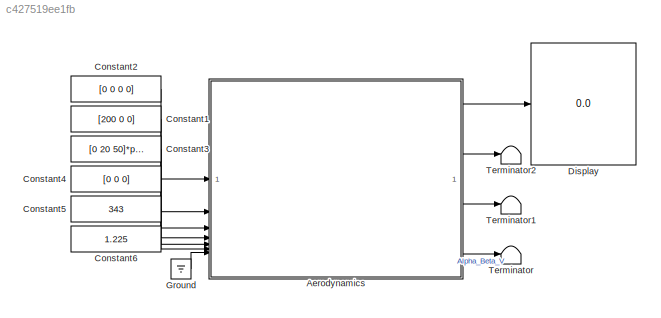
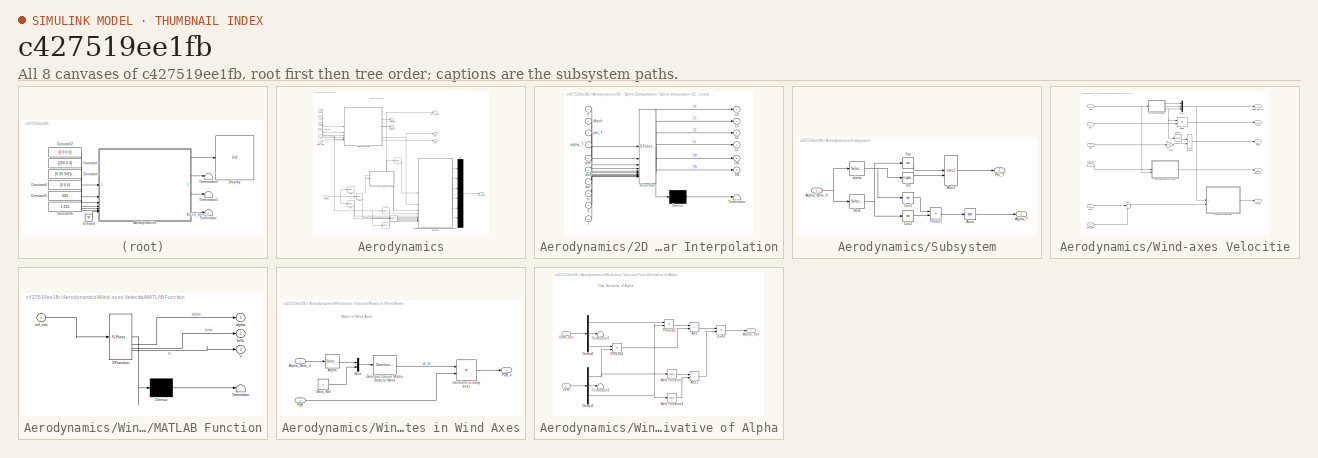
[diagram: thumbnail index - all 8 canvases of the model, root first then tree order]
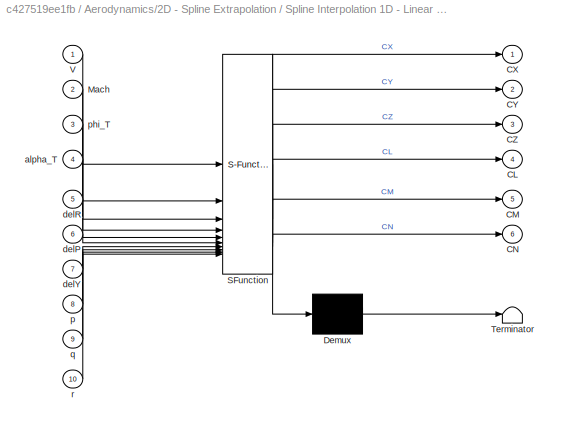
MODEL slx_c427519ee1fb
KIND model
CONFIG AbsTol = auto
CONFIG EnableMultiTasking = off
CONFIG FixedStep = auto
CONFIG MaxStep = auto
CONFIG MinStep = auto
CONFIG RelTol = 1e-3
CONFIG SampleTimeConstraint = Unconstrained
CONFIG SolverName = VariableStepAuto
CONFIG StartTime = 0.0
CONFIG StopTime = 10.0
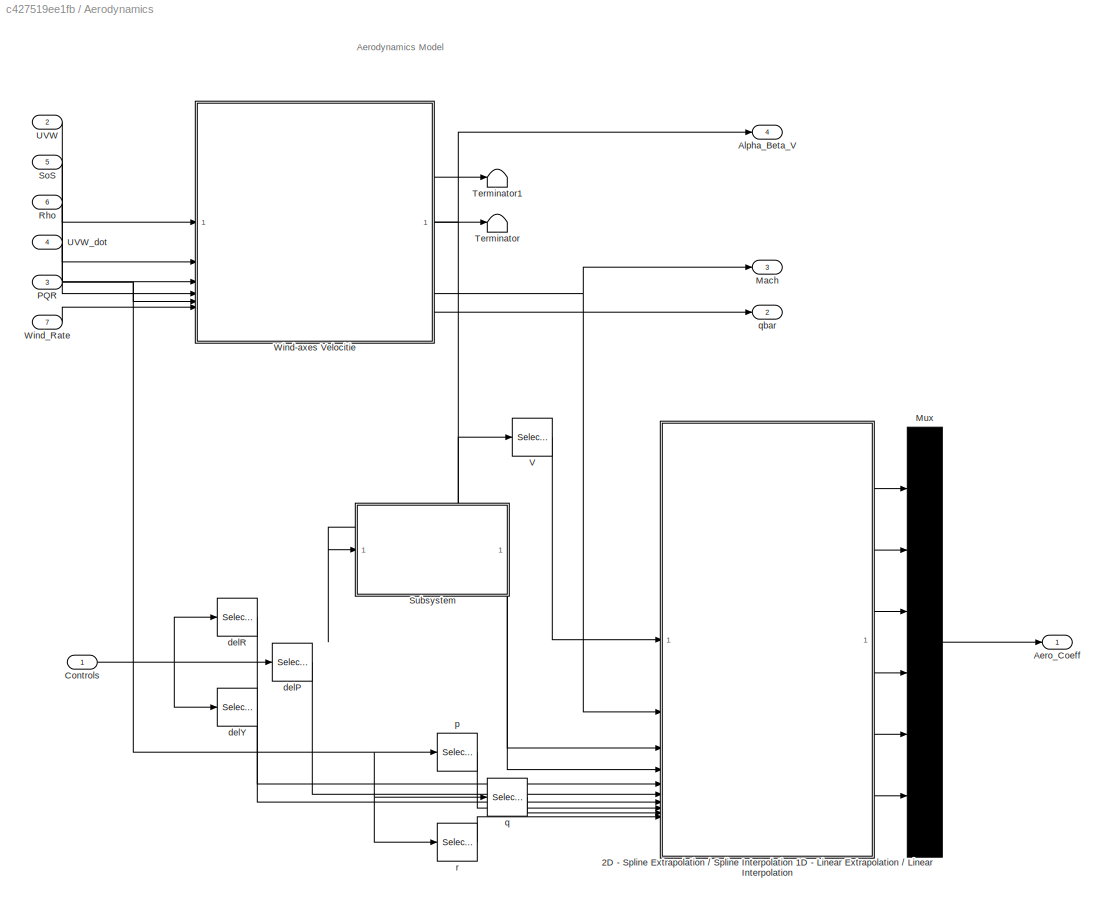
BLOCK [SubSystem] Aerodynamics
BLOCK [SubSystem] Aerodynamics/2D - Spline Extrapolation // Spline Interpolation 1D - Linear Extrapolation // Linear Interpolation
  ErrorFcn = Stateflow.Translate.translate
  LibrarySourceBlock = simulink/User-Defined\nFunctions/MATLAB Function
  PermitHierarchicalResolution = ExplicitOnly
  SFBlockType = MATLAB Function
  TreatAsAtomicUnit = on
BLOCK [Demux] Aerodynamics/2D - Spline Extrapolation // Spline Interpolation 1D - Linear Extrapolation // Linear Interpolation/ Demux 
  Outputs = 1
BLOCK [S-Function] Aerodynamics/2D - Spline Extrapolation // Spline Interpolation 1D - Linear Extrapolation // Linear Interpolation/ SFunction 
  EnableBusSupport = on
  FunctionName = sf_sfun
  PortCounts = [10 7]
  SFcnIsStateOwnerBlock = off
  SFunctionDeploymentMode = off
  Tag = Stateflow S-Function 3
BLOCK [Terminator] Aerodynamics/2D - Spline Extrapolation // Spline Interpolation 1D - Linear Extrapolation // Linear Interpolation/ Terminator 
BLOCK [Outport] Aerodynamics/2D - Spline Extrapolation // Spline Interpolation 1D - Linear Extrapolation // Linear Interpolation/CL
  Port = 4
BLOCK [Outport] Aerodynamics/2D - Spline Extrapolation // Spline Interpolation 1D - Linear Extrapolation // Linear Interpolation/CM
  Port = 5
BLOCK [Outport] Aerodynamics/2D - Spline Extrapolation // Spline Interpolation 1D - Linear Extrapolation // Linear Interpolation/CN
  Port = 6
BLOCK [Outport] Aerodynamics/2D - Spline Extrapolation // Spline Interpolation 1D - Linear Extrapolation // Linear Interpolation/CX
BLOCK [Outport] Aerodynamics/2D - Spline Extrapolation // Spline Interpolation 1D - Linear Extrapolation // Linear Interpolation/CY
  Port = 2
BLOCK [Outport] Aerodynamics/2D - Spline Extrapolation // Spline Interpolation 1D - Linear Extrapolation // Linear Interpolation/CZ
  Port = 3
BLOCK [Inport] Aerodynamics/2D - Spline Extrapolation // Spline Interpolation 1D - Linear Extrapolation // Linear Interpolation/Mach
  Port = 2
BLOCK [Inport] Aerodynamics/2D - Spline Extrapolation // Spline Interpolation 1D - Linear Extrapolation // Linear Interpolation/V
BLOCK [Inport] Aerodynamics/2D - Spline Extrapolation // Spline Interpolation 1D - Linear Extrapolation // Linear Interpolation/alpha_T
  Port = 4
BLOCK [Inport] Aerodynamics/2D - Spline Extrapolation // Spline Interpolation 1D - Linear Extrapolation // Linear Interpolation/delP
  Port = 6
BLOCK [Inport] Aerodynamics/2D - Spline Extrapolation // Spline Interpolation 1D - Linear Extrapolation // Linear Interpolation/delR
  Port = 5
BLOCK [Inport] Aerodynamics/2D - Spline Extrapolation // Spline Interpolation 1D - Linear Extrapolation // Linear Interpolation/delY
  Port = 7
BLOCK [Inport] Aerodynamics/2D - Spline Extrapolation // Spline Interpolation 1D - Linear Extrapolation // Linear Interpolation/p
  Port = 8
BLOCK [Inport] Aerodynamics/2D - Spline Extrapolation // Spline Interpolation 1D - Linear Extrapolation // Linear Interpolation/phi_T
  Port = 3
BLOCK [Inport] Aerodynamics/2D - Spline Extrapolation // Spline Interpolation 1D - Linear Extrapolation // Linear Interpolation/q
  Port = 9
BLOCK [Inport] Aerodynamics/2D - Spline Extrapolation // Spline Interpolation 1D - Linear Extrapolation // Linear Interpolation/r
  Port = 10
BLOCK [Outport] Aerodynamics/Aero_Coeff
BLOCK [Outport] Aerodynamics/Alpha_Beta_V
  Port = 4
BLOCK [Inport] Aerodynamics/Controls
BLOCK [Outport] Aerodynamics/Mach
  Port = 3
BLOCK [Mux] Aerodynamics/Mux
  DisplayOption = bar
  Inputs = 6
BLOCK [Inport] Aerodynamics/PQR
  Port = 3
BLOCK [Inport] Aerodynamics/Rho
  Port = 6
BLOCK [Inport] Aerodynamics/SoS
  Port = 5
BLOCK [SubSystem] Aerodynamics/Subsystem
BLOCK [Trigonometry] Aerodynamics/Subsystem/Acos
  Operator = acos
BLOCK [Inport] Aerodynamics/Subsystem/Alpha_Beta_V
BLOCK [Outport] Aerodynamics/Subsystem/Alpha_T
  Port = 2
BLOCK [Trigonometry] Aerodynamics/Subsystem/Atan2
  Operator = atan2
BLOCK [Selector] Aerodynamics/Subsystem/Beta
  IndexOptions = Index vector (dialog)
  Indices = [2]
  InputPortWidth = 3
  OutputSizes = 1
BLOCK [Trigonometry] Aerodynamics/Subsystem/Cos1
  Operator = cos
BLOCK [Trigonometry] Aerodynamics/Subsystem/Cos2
  Operator = cos
BLOCK [Outport] Aerodynamics/Subsystem/Phi_T
BLOCK [Product] Aerodynamics/Subsystem/Product
BLOCK [Trigonometry] Aerodynamics/Subsystem/Sin
BLOCK [Trigonometry] Aerodynamics/Subsystem/Tan
  Operator = tan
BLOCK [Selector] Aerodynamics/Subsystem/alpha
  IndexOptions = Index vector (dialog)
  Indices = [1]
  InputPortWidth = 3
  OutputSizes = 1
BLOCK [Terminator] Aerodynamics/Terminator
BLOCK [Terminator] Aerodynamics/Terminator1
BLOCK [Inport] Aerodynamics/UVW
  Port = 2
BLOCK [Inport] Aerodynamics/UVW_dot 
  Port = 4
BLOCK [Selector] Aerodynamics/V
  IndexOptions = Index vector (dialog)
  Indices = [3]
  InputPortWidth = 3
  OutputSizes = 1
BLOCK [SubSystem] Aerodynamics/Wind-axes Velocitie
BLOCK [Outport] Aerodynamics/Wind-axes Velocitie/Alpha_Beta_V
BLOCK [Product] Aerodynamics/Wind-axes Velocitie/Divide
  Inputs = */
BLOCK [Gain] Aerodynamics/Wind-axes Velocitie/Gain
  Gain = 0.5
BLOCK [SubSystem] Aerodynamics/Wind-axes Velocitie/MATLAB Function
  ErrorFcn = Stateflow.Translate.translate
  LibrarySourceBlock = simulink/User-Defined\nFunctions/MATLAB Function
  PermitHierarchicalResolution = ExplicitOnly
  SFBlockType = MATLAB Function
  TreatAsAtomicUnit = on
BLOCK [Demux] Aerodynamics/Wind-axes Velocitie/MATLAB Function/ Demux 
  Outputs = 1
BLOCK [S-Function] Aerodynamics/Wind-axes Velocitie/MATLAB Function/ SFunction 
  EnableBusSupport = on
  FunctionName = sf_sfun
  PortCounts = [1 4]
  SFcnIsStateOwnerBlock = off
  SFunctionDeploymentMode = off
  Tag = Stateflow S-Function 1
BLOCK [Terminator] Aerodynamics/Wind-axes Velocitie/MATLAB Function/ Terminator 
BLOCK [Outport] Aerodynamics/Wind-axes Velocitie/MATLAB Function/V
  Port = 3
BLOCK [Outport] Aerodynamics/Wind-axes Velocitie/MATLAB Function/alpha
BLOCK [Outport] Aerodynamics/Wind-axes Velocitie/MATLAB Function/beta
  Port = 2
BLOCK [Inport] Aerodynamics/Wind-axes Velocitie/MATLAB Function/vel_vec
BLOCK [Outport] Aerodynamics/Wind-axes Velocitie/Mach
  Port = 4
BLOCK [Mux] Aerodynamics/Wind-axes Velocitie/Mux1
  DisplayOption = bar
  Inputs = 3
BLOCK [Inport] Aerodynamics/Wind-axes Velocitie/PQR
  Port = 5
BLOCK [Outport] Aerodynamics/Wind-axes Velocitie/PQR_s
  Port = 2
BLOCK [Product] Aerodynamics/Wind-axes Velocitie/Product
BLOCK [SubSystem] Aerodynamics/Wind-axes Velocitie/Rates in Wind Axes
BLOCK [Selector] Aerodynamics/Wind-axes Velocitie/Rates in Wind Axes/Alpha
  IndexOptions = Index vector (dialog)
  Indices = [1]
  InputPortWidth = 3
  OutputSizes = 1
BLOCK [Inport] Aerodynamics/Wind-axes Velocitie/Rates in Wind Axes/Alpha_Beta_V
BLOCK [Constant] Aerodynamics/Wind-axes Velocitie/Rates in Wind Axes/Beta_Ref
  Value = 0
BLOCK [Reference] Aerodynamics/Wind-axes Velocitie/Rates in Wind Axes/Direction Cosine Matrix Body to Wind  REF=aerolibtransform2/Direction Cosine Matrix
Body to Wind
  SourceBlock = aerolibtransform2/Direction Cosine Matrix\nBody to Wind
  SourceType = DCM Body to Wind
BLOCK [Mux] Aerodynamics/Wind-axes Velocitie/Rates in Wind Axes/Mux
  DisplayOption = bar
  Inputs = 2
BLOCK [Inport] Aerodynamics/Wind-axes Velocitie/Rates in Wind Axes/PQR
  Port = 2
BLOCK [Outport] Aerodynamics/Wind-axes Velocitie/Rates in Wind Axes/PQR_s
BLOCK [Product] Aerodynamics/Wind-axes Velocitie/Rates in Wind Axes/transform to body axes
  InputSameDT = on
  Inputs = **
  Multiplication = Matrix(*)
  OutDataTypeStr = Inherit: Same as first input
  SaturateOnIntegerOverflow = on
BLOCK [Inport] Aerodynamics/Wind-axes Velocitie/Rho
  Port = 3
BLOCK [Inport] Aerodynamics/Wind-axes Velocitie/SoS
  Port = 2
BLOCK [Math] Aerodynamics/Wind-axes Velocitie/Square
  Operator = square
BLOCK [Sum] Aerodynamics/Wind-axes Velocitie/Sum3
  InputSameDT = on
  Inputs = |+-
  OutDataTypeStr = Inherit: Same as first input
  SaturateOnIntegerOverflow = on
BLOCK [SubSystem] Aerodynamics/Wind-axes Velocitie/Time-Derivative of Alpha
BLOCK [Sum] Aerodynamics/Wind-axes Velocitie/Time-Derivative of Alpha/Add
  IconShape = rectangular
  Inputs = -+
BLOCK [Sum] Aerodynamics/Wind-axes Velocitie/Time-Derivative of Alpha/Add1
  IconShape = rectangular
BLOCK [Outport] Aerodynamics/Wind-axes Velocitie/Time-Derivative of Alpha/Alpha_dot
BLOCK [Demux] Aerodynamics/Wind-axes Velocitie/Time-Derivative of Alpha/Demux2
  Outputs = 3
BLOCK [Demux] Aerodynamics/Wind-axes Velocitie/Time-Derivative of Alpha/Demux3
  Outputs = 3
BLOCK [Product] Aerodynamics/Wind-axes Velocitie/Time-Derivative of Alpha/Divide
  Inputs = */
BLOCK [Math] Aerodynamics/Wind-axes Velocitie/Time-Derivative of Alpha/Math Function2
  Operator = square
  SignedPower = on
BLOCK [Math] Aerodynamics/Wind-axes Velocitie/Time-Derivative of Alpha/Math Function3
  Operator = square
  SignedPower = on
BLOCK [Product] Aerodynamics/Wind-axes Velocitie/Time-Derivative of Alpha/Product3
BLOCK [Product] Aerodynamics/Wind-axes Velocitie/Time-Derivative of Alpha/Product4
BLOCK [Terminator] Aerodynamics/Wind-axes Velocitie/Time-Derivative of Alpha/Terminator2
BLOCK [Terminator] Aerodynamics/Wind-axes Velocitie/Time-Derivative of Alpha/Terminator3
BLOCK [Inport] Aerodynamics/Wind-axes Velocitie/Time-Derivative of Alpha/UVW
  Port = 2
BLOCK [Inport] Aerodynamics/Wind-axes Velocitie/Time-Derivative of Alpha/UVW_dot
BLOCK [Inport] Aerodynamics/Wind-axes Velocitie/UVW
BLOCK [Inport] Aerodynamics/Wind-axes Velocitie/UVW_dot
  Port = 4
BLOCK [Inport] Aerodynamics/Wind-axes Velocitie/Wind_Rate
  Port = 6
BLOCK [Outport] Aerodynamics/Wind-axes Velocitie/alpha_dot
  Port = 3
BLOCK [Outport] Aerodynamics/Wind-axes Velocitie/qbar
  Port = 5
BLOCK [Inport] Aerodynamics/Wind_Rate
  Port = 7
BLOCK [Selector] Aerodynamics/delP
  IndexOptions = Index vector (dialog)
  Indices = [3]
  InputPortWidth = 4
  OutputSizes = 1
BLOCK [Selector] Aerodynamics/delR
  IndexOptions = Index vector (dialog)
  Indices = [2]
  InputPortWidth = 4
  OutputSizes = 1
BLOCK [Selector] Aerodynamics/delY
  IndexOptions = Index vector (dialog)
  Indices = [4]
  InputPortWidth = 4
  OutputSizes = 1
BLOCK [Selector] Aerodynamics/p
  IndexOptions = Index vector (dialog)
  Indices = [1]
  InputPortWidth = 3
  OutputSizes = 1
BLOCK [Selector] Aerodynamics/q
  IndexOptions = Index vector (dialog)
  Indices = [2]
  InputPortWidth = 3
  OutputSizes = 1
BLOCK [Outport] Aerodynamics/qbar
  Port = 2
BLOCK [Selector] Aerodynamics/r
  IndexOptions = Index vector (dialog)
  Indices = [3]
  InputPortWidth = 3
  OutputSizes = 1
BLOCK [Constant] Constant1
  Value = [200 0 0]
BLOCK [Constant] Constant2
  Value = [0 0 0 0]
BLOCK [Constant] Constant3
  Value = [0 20 50]*pi/180
BLOCK [Constant] Constant4
  Value = [0 0 0]
BLOCK [Constant] Constant5
  Value = 343
BLOCK [Constant] Constant6
  Value = 1.225
BLOCK [Display] Display
  Decimation = 1
BLOCK [Ground] Ground
BLOCK [Terminator] Terminator
BLOCK [Terminator] Terminator1
BLOCK [Terminator] Terminator2
ANNOTATION Aerodynamics: Aerodynamics Model
ANNOTATION Aerodynamics/Wind-axes Velocitie/Rates in Wind Axes: Rates in Wind Axes
ANNOTATION Aerodynamics/Wind-axes Velocitie/Time-Derivative of Alpha: Time Derivative of Alpha
LINE Aerodynamics/2D - Spline Extrapolation // Spline Interpolation 1D - Linear Extrapolation // Linear Interpolation:1 -> Aerodynamics/Mux:1
LINE Aerodynamics/2D - Spline Extrapolation // Spline Interpolation 1D - Linear Extrapolation // Linear Interpolation:2 -> Aerodynamics/Mux:2
LINE Aerodynamics/2D - Spline Extrapolation // Spline Interpolation 1D - Linear Extrapolation // Linear Interpolation:3 -> Aerodynamics/Mux:3
LINE Aerodynamics/2D - Spline Extrapolation // Spline Interpolation 1D - Linear Extrapolation // Linear Interpolation:4 -> Aerodynamics/Mux:4
LINE Aerodynamics/2D - Spline Extrapolation // Spline Interpolation 1D - Linear Extrapolation // Linear Interpolation:5 -> Aerodynamics/Mux:5
LINE Aerodynamics/2D - Spline Extrapolation // Spline Interpolation 1D - Linear Extrapolation // Linear Interpolation:6 -> Aerodynamics/Mux:6
NET Aerodynamics/Controls:1 -> Aerodynamics/delP:1, Aerodynamics/delR:1, Aerodynamics/delY:1
LINE Aerodynamics/Mux:1 -> Aerodynamics/Aero_Coeff:1
NET Aerodynamics/PQR:1 -> Aerodynamics/Wind-axes Velocitie:5, Aerodynamics/p:1, Aerodynamics/q:1, Aerodynamics/r:1
LINE Aerodynamics/Rho:1 -> Aerodynamics/Wind-axes Velocitie:3
LINE Aerodynamics/SoS:1 -> Aerodynamics/Wind-axes Velocitie:2
LINE Aerodynamics/Subsystem/Acos:1 -> Aerodynamics/Subsystem/Alpha_T:1
NET Aerodynamics/Subsystem/Alpha_Beta_V:1 -> Aerodynamics/Subsystem/Beta:1, Aerodynamics/Subsystem/alpha:1
LINE Aerodynamics/Subsystem/Atan2:1 -> Aerodynamics/Subsystem/Phi_T:1
NET Aerodynamics/Subsystem/Beta:1 -> Aerodynamics/Subsystem/Cos2:1, Aerodynamics/Subsystem/Tan:1
LINE Aerodynamics/Subsystem/Cos1:1 -> Aerodynamics/Subsystem/Product:1
LINE Aerodynamics/Subsystem/Cos2:1 -> Aerodynamics/Subsystem/Product:2
LINE Aerodynamics/Subsystem/Product:1 -> Aerodynamics/Subsystem/Acos:1
LINE Aerodynamics/Subsystem/Sin:1 -> Aerodynamics/Subsystem/Atan2:2
LINE Aerodynamics/Subsystem/Tan:1 -> Aerodynamics/Subsystem/Atan2:1
NET Aerodynamics/Subsystem/alpha:1 -> Aerodynamics/Subsystem/Cos1:1, Aerodynamics/Subsystem/Sin:1
LINE Aerodynamics/Subsystem:1 -> Aerodynamics/2D - Spline Extrapolation // Spline Interpolation 1D - Linear Extrapolation // Linear Interpolation:3
LINE Aerodynamics/Subsystem:2 -> Aerodynamics/2D - Spline Extrapolation // Spline Interpolation 1D - Linear Extrapolation // Linear Interpolation:4
LINE Aerodynamics/UVW:1 -> Aerodynamics/Wind-axes Velocitie:1
LINE Aerodynamics/UVW_dot :1 -> Aerodynamics/Wind-axes Velocitie:4
LINE Aerodynamics/V:1 -> Aerodynamics/2D - Spline Extrapolation // Spline Interpolation 1D - Linear Extrapolation // Linear Interpolation:1
LINE Aerodynamics/Wind-axes Velocitie/Divide:1 -> Aerodynamics/Wind-axes Velocitie/Mach:1
LINE Aerodynamics/Wind-axes Velocitie/Gain:1 -> Aerodynamics/Wind-axes Velocitie/Product:2
LINE Aerodynamics/Wind-axes Velocitie/MATLAB Function:1 -> Aerodynamics/Wind-axes Velocitie/Mux1:1
LINE Aerodynamics/Wind-axes Velocitie/MATLAB Function:2 -> Aerodynamics/Wind-axes Velocitie/Mux1:2
NET Aerodynamics/Wind-axes Velocitie/MATLAB Function:3 -> Aerodynamics/Wind-axes Velocitie/Divide:1, Aerodynamics/Wind-axes Velocitie/Mux1:3, Aerodynamics/Wind-axes Velocitie/Square:1
NET Aerodynamics/Wind-axes Velocitie/Mux1:1 -> Aerodynamics/Wind-axes Velocitie/Alpha_Beta_V:1, Aerodynamics/Wind-axes Velocitie/Rates in Wind Axes:1
LINE Aerodynamics/Wind-axes Velocitie/PQR:1 -> Aerodynamics/Wind-axes Velocitie/Sum3:1
LINE Aerodynamics/Wind-axes Velocitie/Product:1 -> Aerodynamics/Wind-axes Velocitie/qbar:1
LINE Aerodynamics/Wind-axes Velocitie/Rates in Wind Axes/Alpha:1 -> Aerodynamics/Wind-axes Velocitie/Rates in Wind Axes/Mux:1
LINE Aerodynamics/Wind-axes Velocitie/Rates in Wind Axes/Alpha_Beta_V:1 -> Aerodynamics/Wind-axes Velocitie/Rates in Wind Axes/Alpha:1
LINE Aerodynamics/Wind-axes Velocitie/Rates in Wind Axes/Beta_Ref:1 -> Aerodynamics/Wind-axes Velocitie/Rates in Wind Axes/Mux:2
LINE Aerodynamics/Wind-axes Velocitie/Rates in Wind Axes/Direction Cosine Matrix Body to Wind:1 -> Aerodynamics/Wind-axes Velocitie/Rates in Wind Axes/transform to body axes:1
LINE Aerodynamics/Wind-axes Velocitie/Rates in Wind Axes/Mux:1 -> Aerodynamics/Wind-axes Velocitie/Rates in Wind Axes/Direction Cosine Matrix Body to Wind:1
LINE Aerodynamics/Wind-axes Velocitie/Rates in Wind Axes/PQR:1 -> Aerodynamics/Wind-axes Velocitie/Rates in Wind Axes/transform to body axes:2
LINE Aerodynamics/Wind-axes Velocitie/Rates in Wind Axes/transform to body axes:1 -> Aerodynamics/Wind-axes Velocitie/Rates in Wind Axes/PQR_s:1
LINE Aerodynamics/Wind-axes Velocitie/Rates in Wind Axes:1 -> Aerodynamics/Wind-axes Velocitie/PQR_s:1
LINE Aerodynamics/Wind-axes Velocitie/Rho:1 -> Aerodynamics/Wind-axes Velocitie/Gain:1
LINE Aerodynamics/Wind-axes Velocitie/SoS:1 -> Aerodynamics/Wind-axes Velocitie/Divide:2
LINE Aerodynamics/Wind-axes Velocitie/Square:1 -> Aerodynamics/Wind-axes Velocitie/Product:1
LINE Aerodynamics/Wind-axes Velocitie/Sum3:1 -> Aerodynamics/Wind-axes Velocitie/Rates in Wind Axes:2
LINE Aerodynamics/Wind-axes Velocitie/Time-Derivative of Alpha/Add1:1 -> Aerodynamics/Wind-axes Velocitie/Time-Derivative of Alpha/Divide:2
LINE Aerodynamics/Wind-axes Velocitie/Time-Derivative of Alpha/Add:1 -> Aerodynamics/Wind-axes Velocitie/Time-Derivative of Alpha/Divide:1
LINE Aerodynamics/Wind-axes Velocitie/Time-Derivative of Alpha/Demux2:1 -> Aerodynamics/Wind-axes Velocitie/Time-Derivative of Alpha/Product3:1
LINE Aerodynamics/Wind-axes Velocitie/Time-Derivative of Alpha/Demux2:2 -> Aerodynamics/Wind-axes Velocitie/Time-Derivative of Alpha/Terminator2:1
LINE Aerodynamics/Wind-axes Velocitie/Time-Derivative of Alpha/Demux2:3 -> Aerodynamics/Wind-axes Velocitie/Time-Derivative of Alpha/Product4:1
NET Aerodynamics/Wind-axes Velocitie/Time-Derivative of Alpha/Demux3:1 -> Aerodynamics/Wind-axes Velocitie/Time-Derivative of Alpha/Math Function2:1, Aerodynamics/Wind-axes Velocitie/Time-Derivative of Alpha/Product4:2
LINE Aerodynamics/Wind-axes Velocitie/Time-Derivative of Alpha/Demux3:2 -> Aerodynamics/Wind-axes Velocitie/Time-Derivative of Alpha/Terminator3:1
NET Aerodynamics/Wind-axes Velocitie/Time-Derivative of Alpha/Demux3:3 -> Aerodynamics/Wind-axes Velocitie/Time-Derivative of Alpha/Math Function3:1, Aerodynamics/Wind-axes Velocitie/Time-Derivative of Alpha/Product3:2
LINE Aerodynamics/Wind-axes Velocitie/Time-Derivative of Alpha/Divide:1 -> Aerodynamics/Wind-axes Velocitie/Time-Derivative of Alpha/Alpha_dot:1
LINE Aerodynamics/Wind-axes Velocitie/Time-Derivative of Alpha/Math Function2:1 -> Aerodynamics/Wind-axes Velocitie/Time-Derivative of Alpha/Add1:1
LINE Aerodynamics/Wind-axes Velocitie/Time-Derivative of Alpha/Math Function3:1 -> Aerodynamics/Wind-axes Velocitie/Time-Derivative of Alpha/Add1:2
LINE Aerodynamics/Wind-axes Velocitie/Time-Derivative of Alpha/Product3:1 -> Aerodynamics/Wind-axes Velocitie/Time-Derivative of Alpha/Add:1
LINE Aerodynamics/Wind-axes Velocitie/Time-Derivative of Alpha/Product4:1 -> Aerodynamics/Wind-axes Velocitie/Time-Derivative of Alpha/Add:2
LINE Aerodynamics/Wind-axes Velocitie/Time-Derivative of Alpha/UVW:1 -> Aerodynamics/Wind-axes Velocitie/Time-Derivative of Alpha/Demux3:1
LINE Aerodynamics/Wind-axes Velocitie/Time-Derivative of Alpha/UVW_dot:1 -> Aerodynamics/Wind-axes Velocitie/Time-Derivative of Alpha/Demux2:1
LINE Aerodynamics/Wind-axes Velocitie/Time-Derivative of Alpha:1 -> Aerodynamics/Wind-axes Velocitie/alpha_dot:1
NET Aerodynamics/Wind-axes Velocitie/UVW:1 -> Aerodynamics/Wind-axes Velocitie/MATLAB Function:1, Aerodynamics/Wind-axes Velocitie/Time-Derivative of Alpha:2
LINE Aerodynamics/Wind-axes Velocitie/UVW_dot:1 -> Aerodynamics/Wind-axes Velocitie/Time-Derivative of Alpha:1
LINE Aerodynamics/Wind-axes Velocitie/Wind_Rate:1 -> Aerodynamics/Wind-axes Velocitie/Sum3:2
NET Aerodynamics/Wind-axes Velocitie:1 -> Aerodynamics/Alpha_Beta_V:1, Aerodynamics/Subsystem:1, Aerodynamics/V:1
LINE Aerodynamics/Wind-axes Velocitie:2 -> Aerodynamics/Terminator1:1
LINE Aerodynamics/Wind-axes Velocitie:3 -> Aerodynamics/Terminator:1
NET Aerodynamics/Wind-axes Velocitie:4 -> Aerodynamics/2D - Spline Extrapolation // Spline Interpolation 1D - Linear Extrapolation // Linear Interpolation:2, Aerodynamics/Mach:1
LINE Aerodynamics/Wind-axes Velocitie:5 -> Aerodynamics/qbar:1
LINE Aerodynamics/Wind_Rate:1 -> Aerodynamics/Wind-axes Velocitie:6
LINE Aerodynamics/delP:1 -> Aerodynamics/2D - Spline Extrapolation // Spline Interpolation 1D - Linear Extrapolation // Linear Interpolation:6
LINE Aerodynamics/delR:1 -> Aerodynamics/2D - Spline Extrapolation // Spline Interpolation 1D - Linear Extrapolation // Linear Interpolation:5
LINE Aerodynamics/delY:1 -> Aerodynamics/2D - Spline Extrapolation // Spline Interpolation 1D - Linear Extrapolation // Linear Interpolation:7
LINE Aerodynamics/p:1 -> Aerodynamics/2D - Spline Extrapolation // Spline Interpolation 1D - Linear Extrapolation // Linear Interpolation:8
LINE Aerodynamics/q:1 -> Aerodynamics/2D - Spline Extrapolation // Spline Interpolation 1D - Linear Extrapolation // Linear Interpolation:9
LINE Aerodynamics/r:1 -> Aerodynamics/2D - Spline Extrapolation // Spline Interpolation 1D - Linear Extrapolation // Linear Interpolation:10
LINE Aerodynamics:1 -> Display:1
LINE Aerodynamics:2 -> Terminator2:1
LINE Aerodynamics:3 -> Terminator1:1
LINE Aerodynamics:4 -> Terminator:1
LINE Constant1:1 -> Aerodynamics:2
LINE Constant2:1 -> Aerodynamics:1
LINE Constant3:1 -> Aerodynamics:3
LINE Constant4:1 -> Aerodynamics:4
LINE Constant5:1 -> Aerodynamics:5
LINE Constant6:1 -> Aerodynamics:6
LINE Ground:1 -> Aerodynamics:7
note: NET lines group one-source signal fan-out (src -> all destinations, sorted); 1:1 wires keep LINE
CHART Aerodynamics/Wind-axes Velocitie/MATLAB Function states=1 transitions=1
  STATE_LABEL 'eML_blk_kernel()'
  STATE_LABEL 'SCRIPT:\nfunction [alpha, beta, V] = calc_abv(vel_vec)\n\nu = vel_vec(1);\nv = vel_vec(2);\nw = vel_vec(3);\n\nV = norm([u v w]);          % [m/s] UAV total Speed\nalpha = atan2(w,u);          % [rad] angle of attack\nbeta  = asin(v/V);          % [rad] sideslip angles\n\nend\n\n'
CHART Aerodynamics/2D - Spline Extrapolation // Spline Interpolation
1D - Linear Extrapolation // Linear Interpolation states=1 transitions=1
  STATE_LABEL 'eML_blk_kernel()'
  STATE_LABEL "SCRIPT:\nfunction [CX, CY, CZ, CL, CM, CN] = AeroCoef(V, Mach,phi_T, alpha_T, delR, delP, delY, p, q, r)\n\ndat = load('UAV_Data.mat');\ndat.Tbl_ALPHAT = dat.Tbl_ALPHAT;    % convert to rad\n% alpha_T = alpha_T *180/pi;            % convert to degree\n\ndel_eff = (abs(delP) + abs(delY))/2;\n\n\nB2A = rot1(-phi_T);                            % Body-to-Aeroballistics\n\ndelARPY = B2A *[delR; delP; delY];\ndelR_A...<+2180ch>"
CHART  states=0 transitions=0
CHART  states=0 transitions=0
